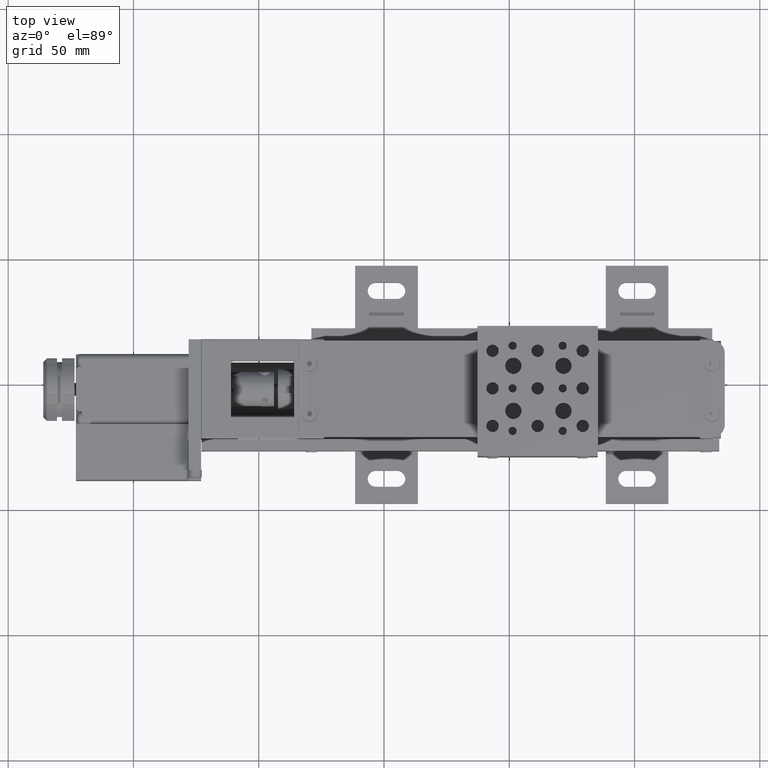
[diagram: clean part render]
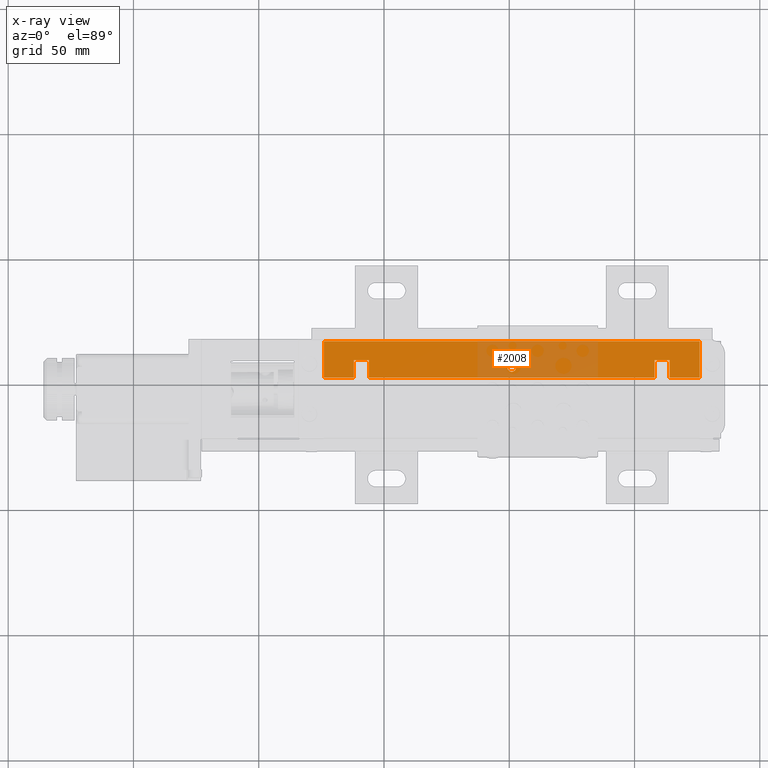
[diagram: x-ray — body ghosted, one internal face saturated and labeled with its STEP entity id]
A machine part, top view, then the same camera in x-ray: the body is ghosted and one INTERNAL B-rep face — a face not visible from any outside direction — is saturated and labeled: STEP entity #2008.
In plain terms, the highlighted planar face has unit normal (0, 0, -1).
Its self-contained STEP definition (entity closure, byte-faithful):
#33=FACE_BOUND('',#6701,.T.);
#546=PLANE('',#41193);
#2008=ADVANCED_FACE('',(#4345,#33),#546,.T.);
#4345=FACE_OUTER_BOUND('',#6700,.T.);
#6700=EDGE_LOOP('',(#9575,#9576,#9577,#9578,#9579,#9580,#9581,#9582,#9583,
#9584,#9585,#9586));
#6701=EDGE_LOOP('',(#9587,#9588));
#9575=ORIENTED_EDGE('',*,*,#22598,.F.);
#9576=ORIENTED_EDGE('',*,*,#22595,.F.);
#9577=ORIENTED_EDGE('',*,*,#22592,.F.);
#9578=ORIENTED_EDGE('',*,*,#22793,.T.);
#9579=ORIENTED_EDGE('',*,*,#22794,.T.);
#9580=ORIENTED_EDGE('',*,*,#22795,.T.);
#9581=ORIENTED_EDGE('',*,*,#22796,.T.);
#9582=ORIENTED_EDGE('',*,*,#22797,.T.);
#9583=ORIENTED_EDGE('',*,*,#22616,.F.);
#9584=ORIENTED_EDGE('',*,*,#22613,.F.);
#9585=ORIENTED_EDGE('',*,*,#22610,.F.);
#9586=ORIENTED_EDGE('',*,*,#22798,.T.);
#9587=ORIENTED_EDGE('',*,*,#27967,.T.);
#9588=ORIENTED_EDGE('',*,*,#29239,.T.);
#22592=EDGE_CURVE('',#36033,#36034,#29305,.T.);
#22595=EDGE_CURVE('',#36034,#36036,#29308,.T.);
#22598=EDGE_CURVE('',#36036,#36037,#29311,.T.);
#22610=EDGE_CURVE('',#36045,#36046,#29323,.T.);
#22613=EDGE_CURVE('',#36046,#36048,#29326,.T.);
#22616=EDGE_CURVE('',#36048,#36049,#29329,.T.);
#22793=EDGE_CURVE('',#36033,#36163,#29478,.T.);
#22794=EDGE_CURVE('',#36163,#36164,#29479,.T.);
#22795=EDGE_CURVE('',#36164,#36165,#29480,.T.);
#22796=EDGE_CURVE('',#36165,#36166,#29481,.T.);
#22797=EDGE_CURVE('',#36166,#36049,#29482,.T.);
#22798=EDGE_CURVE('',#36045,#36037,#29483,.T.);
#27967=EDGE_CURVE('',#36167,#40437,#35465,.T.);
#29239=EDGE_CURVE('',#40437,#36167,#35980,.T.);
#29305=B_SPLINE_CURVE_WITH_KNOTS('',1,(#62041,#62042),.UNSPECIFIED.,.F.,
 .F.,(2,2),(0.,6.99999999999996),.UNSPECIFIED.);
#29308=B_SPLINE_CURVE_WITH_KNOTS('',1,(#62047,#62048),.UNSPECIFIED.,.F.,
 .F.,(2,2),(0.,5.9999999999999),.UNSPECIFIED.);
#29311=B_SPLINE_CURVE_WITH_KNOTS('',1,(#62053,#62054),.UNSPECIFIED.,.F.,
 .F.,(2,2),(0.,6.99999999999995),.UNSPECIFIED.);
#29323=B_SPLINE_CURVE_WITH_KNOTS('',1,(#62077,#62078),.UNSPECIFIED.,.F.,
 .F.,(2,2),(0.,7.00000000000001),.UNSPECIFIED.);
#29326=B_SPLINE_CURVE_WITH_KNOTS('',1,(#62083,#62084),.UNSPECIFIED.,.F.,
 .F.,(2,2),(0.,6.),.UNSPECIFIED.);
#29329=B_SPLINE_CURVE_WITH_KNOTS('',1,(#62089,#62090),.UNSPECIFIED.,.F.,
 .F.,(2,2),(0.,7.00000000000011),.UNSPECIFIED.);
#29478=B_SPLINE_CURVE_WITH_KNOTS('',1,(#62527,#62528),.UNSPECIFIED.,.F.,
 .F.,(2,2),(0.,11.9999999999984),.UNSPECIFIED.);
#29479=B_SPLINE_CURVE_WITH_KNOTS('',1,(#62529,#62530),.UNSPECIFIED.,.F.,
 .F.,(2,2),(0.,14.5),.UNSPECIFIED.);
#29480=B_SPLINE_CURVE_WITH_KNOTS('',1,(#62531,#62532),.UNSPECIFIED.,.F.,
 .F.,(2,2),(0.,150.),.UNSPECIFIED.);
#29481=B_SPLINE_CURVE_WITH_KNOTS('',1,(#62533,#62534),.UNSPECIFIED.,.F.,
 .F.,(2,2),(0.,14.5),.UNSPECIFIED.);
#29482=B_SPLINE_CURVE_WITH_KNOTS('',1,(#62535,#62536),.UNSPECIFIED.,.F.,
 .F.,(2,2),(0.,11.9999999999999),.UNSPECIFIED.);
#29483=B_SPLINE_CURVE_WITH_KNOTS('',1,(#62537,#62538),.UNSPECIFIED.,.F.,
 .F.,(2,2),(0.,114.000000000002),.UNSPECIFIED.);
#35465=(
BOUNDED_CURVE()
B_SPLINE_CURVE(2,(#79221,#79222,#79223,#79224,#79225),.UNSPECIFIED.,.F.,
 .F.)
B_SPLINE_CURVE_WITH_KNOTS((3,2,3),(-10.6814150222053,-8.01106126665397,
-5.34070751110265),.UNSPECIFIED.)
CURVE()
GEOMETRIC_REPRESENTATION_ITEM()
RATIONAL_B_SPLINE_CURVE((1.,0.707106781186548,1.,0.707106781186548,1.))
REPRESENTATION_ITEM('')
);
#35980=(
BOUNDED_CURVE()
B_SPLINE_CURVE(2,(#83438,#83439,#83440,#83441,#83442),.UNSPECIFIED.,.F.,
 .F.)
B_SPLINE_CURVE_WITH_KNOTS((3,2,3),(-5.34070751110265,-2.67035375555132,
0.),.UNSPECIFIED.)
CURVE()
GEOMETRIC_REPRESENTATION_ITEM()
RATIONAL_B_SPLINE_CURVE((1.,0.707106781186548,1.,0.707106781186548,1.))
REPRESENTATION_ITEM('')
);
#36033=VERTEX_POINT('',#57601);
#36034=VERTEX_POINT('',#57602);
#36036=VERTEX_POINT('',#57604);
#36037=VERTEX_POINT('',#57605);
#36045=VERTEX_POINT('',#57613);
#36046=VERTEX_POINT('',#57614);
#36048=VERTEX_POINT('',#57616);
#36049=VERTEX_POINT('',#57617);
#36163=VERTEX_POINT('',#57731);
#36164=VERTEX_POINT('',#57732);
#36165=VERTEX_POINT('',#57733);
#36166=VERTEX_POINT('',#57734);
#36167=VERTEX_POINT('',#57735);
#40437=VERTEX_POINT('',#62005);
#41193=AXIS2_PLACEMENT_3D('',#45542,#43259,$);
#43259=DIRECTION('',(0.,0.,-1.));
#45542=CARTESIAN_POINT('',(141.119999457497,18.8699991585131,9.00155960250484));
#57601=CARTESIAN_POINT('',(-12.0000005425047,2.79999915851296,9.00155960250483));
#57602=CARTESIAN_POINT('',(-12.0000005425047,9.79999915851292,9.00155960250484));
#57604=CARTESIAN_POINT('',(-6.00000054250479,9.79999915851292,9.00155960250484));
#57605=CARTESIAN_POINT('',(-6.00000054250479,2.79999915851297,9.00155960250483));
#57613=CARTESIAN_POINT('',(107.999999457497,2.79999915851301,9.00155960250483));
#57614=CARTESIAN_POINT('',(107.999999457497,9.79999915851302,9.00155960250484));
#57616=CARTESIAN_POINT('',(113.999999457497,9.79999915851312,9.00155960250484));
#57617=CARTESIAN_POINT('',(113.999999457497,2.79999915851301,9.00155960250483));
#57731=CARTESIAN_POINT('',(-24.0000005425031,2.79999915851296,9.00155960250483));
#57732=CARTESIAN_POINT('',(-24.0000005425031,17.2999991585129,9.00155960250484));
#57733=CARTESIAN_POINT('',(125.999999457497,17.299999158513,9.00155960250484));
#57734=CARTESIAN_POINT('',(125.999999457497,2.79999915851301,9.00155960250483));
#57735=CARTESIAN_POINT('',(50.9999994574969,5.099999158513,9.00155960250483));
#62005=CARTESIAN_POINT('',(50.9999994574969,8.49999915851299,9.00155960250483));
#62041=CARTESIAN_POINT('',(-12.0000005425047,2.79999915851296,9.00155960250483));
#62042=CARTESIAN_POINT('',(-12.0000005425047,9.79999915851292,9.00155960250484));
#62047=CARTESIAN_POINT('',(-12.0000005425047,9.79999915851292,9.00155960250484));
#62048=CARTESIAN_POINT('',(-6.00000054250479,9.79999915851292,9.00155960250484));
#62053=CARTESIAN_POINT('',(-6.00000054250479,9.79999915851292,9.00155960250484));
#62054=CARTESIAN_POINT('',(-6.00000054250479,2.79999915851297,9.00155960250483));
#62077=CARTESIAN_POINT('',(107.999999457497,2.79999915851301,9.00155960250483));
#62078=CARTESIAN_POINT('',(107.999999457497,9.79999915851302,9.00155960250484));
#62083=CARTESIAN_POINT('',(107.999999457497,9.79999915851302,9.00155960250484));
#62084=CARTESIAN_POINT('',(113.999999457497,9.79999915851312,9.00155960250484));
#62089=CARTESIAN_POINT('',(113.999999457497,9.79999915851312,9.00155960250484));
#62090=CARTESIAN_POINT('',(113.999999457497,2.79999915851301,9.00155960250483));
#62527=CARTESIAN_POINT('',(-12.0000005425047,2.79999915851296,9.00155960250483));
#62528=CARTESIAN_POINT('',(-24.0000005425031,2.79999915851296,9.00155960250483));
#62529=CARTESIAN_POINT('',(-24.0000005425031,2.79999915851296,9.00155960250483));
#62530=CARTESIAN_POINT('',(-24.0000005425031,17.2999991585129,9.00155960250484));
#62531=CARTESIAN_POINT('',(-24.0000005425031,17.2999991585129,9.00155960250484));
#62532=CARTESIAN_POINT('',(125.999999457497,17.299999158513,9.00155960250484));
#62533=CARTESIAN_POINT('',(125.999999457497,17.299999158513,9.00155960250484));
#62534=CARTESIAN_POINT('',(125.999999457497,2.79999915851301,9.00155960250483));
#62535=CARTESIAN_POINT('',(125.999999457497,2.79999915851301,9.00155960250483));
#62536=CARTESIAN_POINT('',(113.999999457497,2.79999915851301,9.00155960250483));
#62537=CARTESIAN_POINT('',(107.999999457497,2.79999915851301,9.00155960250483));
#62538=CARTESIAN_POINT('',(-6.00000054250479,2.79999915851297,9.00155960250483));
#79221=CARTESIAN_POINT('',(50.9999994574969,5.09999915851299,9.00155960250483));
#79222=CARTESIAN_POINT('',(52.6999994574969,5.09999915851299,9.00155960250483));
#79223=CARTESIAN_POINT('',(52.6999994574969,6.79999915851299,9.00155960250483));
#79224=CARTESIAN_POINT('',(52.6999994574969,8.49999915851299,9.00155960250483));
#79225=CARTESIAN_POINT('',(50.9999994574969,8.49999915851299,9.00155960250483));
#83438=CARTESIAN_POINT('',(50.9999994574969,8.49999915851299,9.00155960250483));
#83439=CARTESIAN_POINT('',(49.2999994574969,8.49999915851299,9.00155960250483));
#83440=CARTESIAN_POINT('',(49.2999994574969,6.79999915851299,9.00155960250483));
#83441=CARTESIAN_POINT('',(49.2999994574969,5.099999158513,9.00155960250483));
#83442=CARTESIAN_POINT('',(50.9999994574969,5.09999915851299,9.00155960250483));